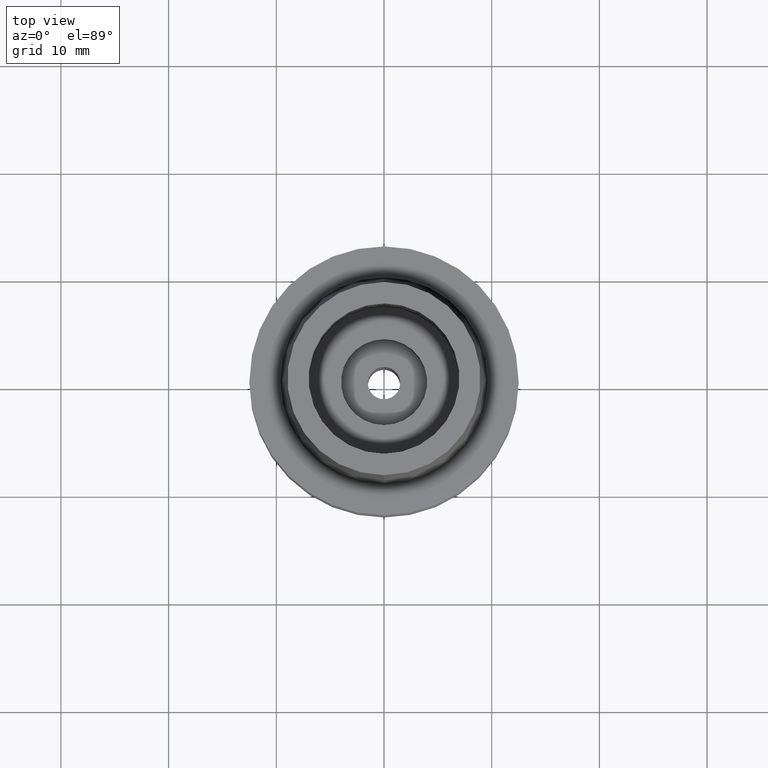
[diagram: clean part render]
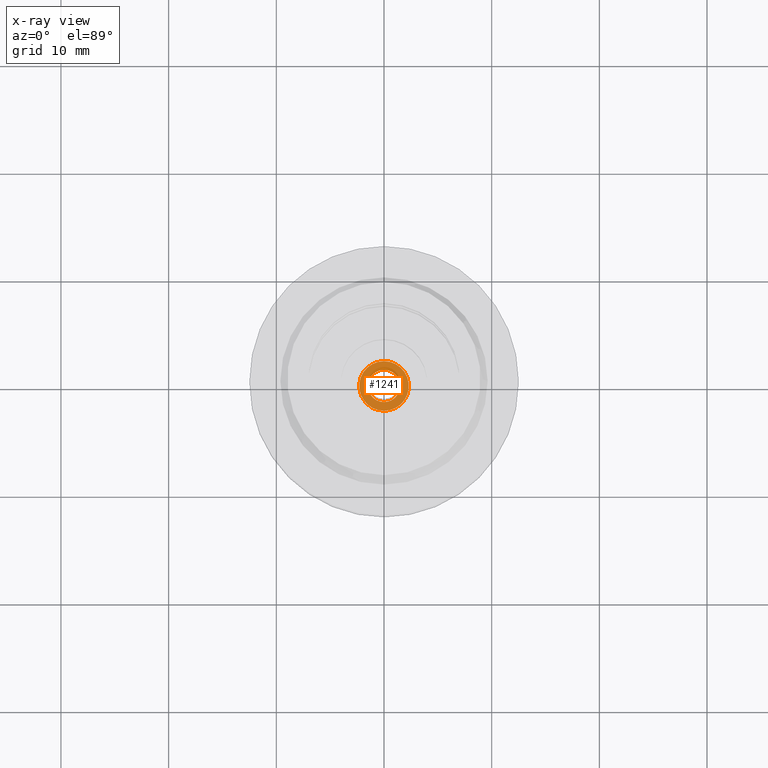
[diagram: x-ray — body ghosted, one internal face saturated and labeled with its STEP entity id]
A machine part, top view, then the same camera in x-ray: the body is ghosted and one INTERNAL B-rep face — a face not visible from any outside direction — is saturated and labeled: STEP entity #1241.
In plain terms, the highlighted planar face has unit normal (0, 0, -1).
Its self-contained STEP definition (entity closure, byte-faithful):
#430=CARTESIAN_POINT('',(0.E0,1.419365640212E-14,-2.7E1));
#431=DIRECTION('',(0.E0,0.E0,1.E0));
#432=DIRECTION('',(0.E0,-1.E0,0.E0));
#433=AXIS2_PLACEMENT_3D('',#430,#431,#432);
#438=CARTESIAN_POINT('',(0.E0,1.419365640212E-14,-2.7E1));
#439=DIRECTION('',(0.E0,0.E0,1.E0));
#440=DIRECTION('',(0.E0,1.E0,0.E0));
#441=AXIS2_PLACEMENT_3D('',#438,#439,#440);
#446=CARTESIAN_POINT('',(0.E0,1.419365640212E-14,-2.7E1));
#447=DIRECTION('',(0.E0,0.E0,-1.E0));
#448=DIRECTION('',(0.E0,-1.E0,0.E0));
#449=AXIS2_PLACEMENT_3D('',#446,#447,#448);
#454=CARTESIAN_POINT('',(0.E0,1.419365640212E-14,-2.7E1));
#455=DIRECTION('',(0.E0,0.E0,-1.E0));
#456=DIRECTION('',(0.E0,1.E0,0.E0));
#457=AXIS2_PLACEMENT_3D('',#454,#455,#456);
#764=CARTESIAN_POINT('',(0.E0,1.5E0,-2.7E1));
#765=VERTEX_POINT('',#764);
#766=CARTESIAN_POINT('',(0.E0,-1.5E0,-2.7E1));
#767=VERTEX_POINT('',#766);
#768=CARTESIAN_POINT('',(0.E0,-2.3E0,-2.7E1));
#769=CARTESIAN_POINT('',(0.E0,2.3E0,-2.7E1));
#770=VERTEX_POINT('',#768);
#771=VERTEX_POINT('',#769);
#1226=CARTESIAN_POINT('',(0.E0,0.E0,-2.7E1));
#1227=DIRECTION('',(0.E0,0.E0,-1.E0));
#1228=DIRECTION('',(0.E0,-1.E0,0.E0));
#1229=AXIS2_PLACEMENT_3D('',#1226,#1227,#1228);
#1230=PLANE('',#1229);
#1231=ORIENTED_EDGE('',*,*,#1219,.T.);
#1232=ORIENTED_EDGE('',*,*,#1208,.T.);
#1233=EDGE_LOOP('',(#1231,#1232));
#1234=FACE_OUTER_BOUND('',#1233,.F.);
#1236=ORIENTED_EDGE('',*,*,#1235,.T.);
#1238=ORIENTED_EDGE('',*,*,#1237,.T.);
#1239=EDGE_LOOP('',(#1236,#1238));
#1240=FACE_BOUND('',#1239,.F.);
#434=CIRCLE('',#433,2.3E0);
#442=CIRCLE('',#441,2.3E0);
#450=CIRCLE('',#449,1.5E0);
#458=CIRCLE('',#457,1.5E0);
#1208=EDGE_CURVE('',#771,#770,#442,.T.);
#1219=EDGE_CURVE('',#770,#771,#434,.T.);
#1235=EDGE_CURVE('',#767,#765,#450,.T.);
#1237=EDGE_CURVE('',#765,#767,#458,.T.);
#1241=ADVANCED_FACE('',(#1234,#1240),#1230,.T.);